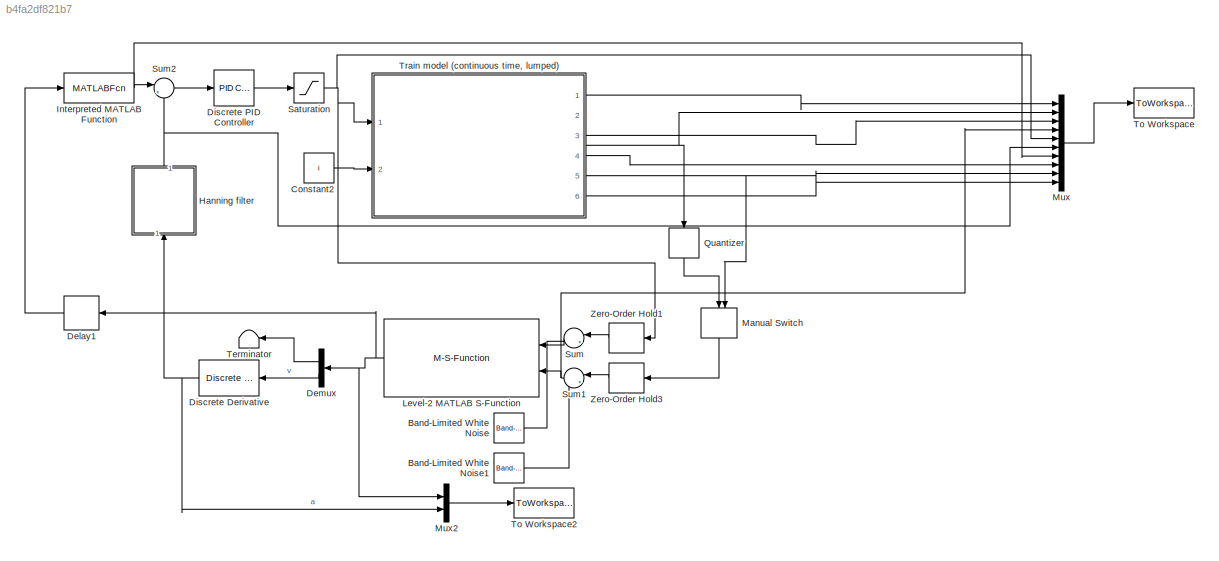
MODEL slx_b4fa2df821b7
KIND model
CONFIG AbsTol = auto
CONFIG EnableMultiTasking = off
CONFIG FixedStep = auto
CONFIG MaxStep = auto
CONFIG MinStep = auto
CONFIG RelTol = 1e-3
CONFIG SampleTimeConstraint = Unconstrained
CONFIG Solver = VariableStepAuto
CONFIG SolverName = VariableStepAuto
CONFIG StartTime = 0.0
CONFIG StopTime = tmax
BLOCK [Reference] Band-Limited White Noise  REF=simulink/Sources/Band-Limited
White Noise
  Ports = [0, 1]
  SourceBlock = simulink/Sources/Band-Limited\nWhite Noise
  SourceProductBaseCode = SL
  SourceProductName = Simulink
  SourceType = Band-Limited White Noise.
BLOCK [Reference] Band-Limited White Noise1  REF=simulink/Sources/Band-Limited
White Noise
  Ports = [0, 1]
  SourceBlock = simulink/Sources/Band-Limited\nWhite Noise
  SourceProductBaseCode = SL
  SourceProductName = Simulink
  SourceType = Band-Limited White Noise.
BLOCK [Constant] Constant2
  Value = i
BLOCK [Delay] Delay1
  DelayLength = 1
  InputPortMap = u0
  Ports = [1, 1]
BLOCK [Demux] Demux
  DisplayOption = bar
  Outputs = 2
  Ports = [1, 2]
BLOCK [Reference] Discrete Derivative  REF=simulink/Discrete/Discrete Derivative
  Ports = [1, 1]
  SourceBlock = simulink/Discrete/Discrete Derivative
  SourceProductBaseCode = SL
  SourceProductName = Simulink
  SourceType = Discrete Derivative
BLOCK [Reference] Discrete PID Controller  REF=simulink/Continuous/PID Controller
  Ports = [1, 1]
  SourceBlock = simulink/Continuous/PID Controller
  SourceProductBaseCode = SL
  SourceProductName = Simulink
  SourceType = PID 1dof
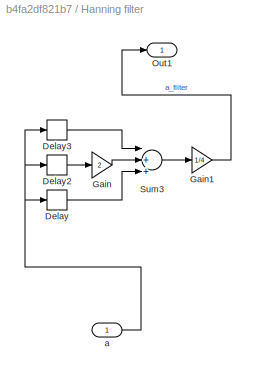
BLOCK [SubSystem] Hanning filter
  Ports = [1, 1]
  RequestExecContextInheritance = off
BLOCK [Delay] Hanning filter/Delay
  DelayLength = 1
  InputPortMap = u0
  Ports = [1, 1]
BLOCK [Delay] Hanning filter/Delay2
  InputPortMap = u0
  Ports = [1, 1]
BLOCK [Delay] Hanning filter/Delay3
  DelayLength = 3
  InputPortMap = u0
  Ports = [1, 1]
BLOCK [Gain] Hanning filter/Gain
  Gain = 2
  OutDataTypeStr = Inherit: Inherit via internal rule
  ParamDataTypeStr = Inherit: Inherit via internal rule
  SaturateOnIntegerOverflow = off
BLOCK [Gain] Hanning filter/Gain1
  Gain = 1/4
  OutDataTypeStr = Inherit: Inherit via internal rule
  ParamDataTypeStr = Inherit: Inherit via internal rule
  SaturateOnIntegerOverflow = off
BLOCK [Outport] Hanning filter/Out1
  IconDisplay = Signal name
BLOCK [Sum] Hanning filter/Sum3
  InputSameDT = off
  Inputs = |+++
  OutDataTypeStr = Inherit: Inherit via internal rule
  Ports = [3, 1]
  SaturateOnIntegerOverflow = off
BLOCK [Inport] Hanning filter/a
  IconDisplay = Port number
BLOCK [MATLABFcn] Interpreted MATLAB Function
  MATLABFcn = -1*(1+alpha*exp(beta*u(1)))*(u(2)*u(2)/abs(smax-u(1)-soffset))
  Ports = [1, 1]
BLOCK [M-S-Function] Level-2 MATLAB S-Function
  FunctionName = KalmanFilter
  Parameters = sysSS.A, sysSS.B, sysSS.C, P, rv, Rw, v0
  Ports = [2, 1]
BLOCK [ManualSwitch] Manual Switch
BLOCK [Mux] Mux
  DisplayOption = bar
  Inputs = 10
  Ports = [10, 1]
BLOCK [Mux] Mux2
  DisplayOption = bar
  Inputs = 2
  Ports = [2, 1]
BLOCK [Quantizer] Quantizer
  QuantizationInterval = 0.8/3.6
BLOCK [Saturate] Saturation
  InputPortMap = u0
  LowerLimit = -10*mumax*mL
  Ports = [1, 1]
  UpperLimit = 0
BLOCK [Sum] Sum
  IconShape = round
  InputSameDT = off
  Inputs = |++
  OutDataTypeStr = Inherit: Inherit via internal rule
  Ports = [2, 1]
  SaturateOnIntegerOverflow = off
BLOCK [Sum] Sum1
  IconShape = round
  InputSameDT = off
  Inputs = |++
  OutDataTypeStr = Inherit: Inherit via internal rule
  Ports = [2, 1]
  SaturateOnIntegerOverflow = off
BLOCK [Sum] Sum2
  IconShape = round
  InputSameDT = off
  Inputs = |+-
  OutDataTypeStr = Inherit: Inherit via internal rule
  Ports = [2, 1]
  SaturateOnIntegerOverflow = off
BLOCK [Terminator] Terminator
BLOCK [ToWorkspace] To Workspace
  FixptAsFi = on
  MaxDataPoints = inf
  Ports = [1]
  SampleTime = -1
  SaveFormat = Timeseries
  VariableName = simout
BLOCK [ToWorkspace] To Workspace2
  FixptAsFi = on
  MaxDataPoints = inf
  Ports = [1]
  SampleTime = -1
  SaveFormat = Timeseries
  VariableName = stateout
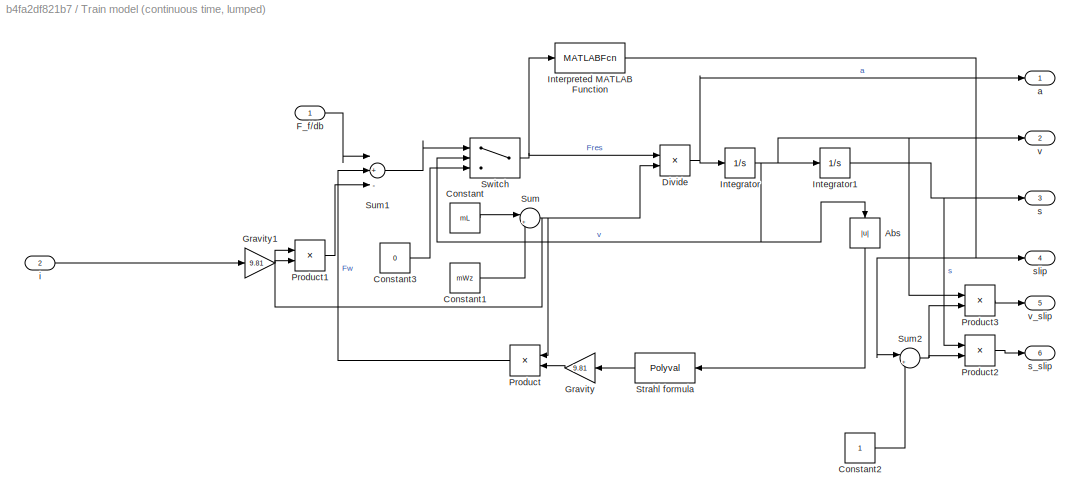
BLOCK [SubSystem] Train model (continuous time, lumped)
  Ports = [2, 6]
  RequestExecContextInheritance = off
BLOCK [Abs] Train model (continuous time, lumped)/Abs
  SaturateOnIntegerOverflow = off
BLOCK [Constant] Train model (continuous time, lumped)/Constant
  Value = mL
BLOCK [Constant] Train model (continuous time, lumped)/Constant1
  Value = mWz
BLOCK [Constant] Train model (continuous time, lumped)/Constant2
BLOCK [Constant] Train model (continuous time, lumped)/Constant3
  Value = 0
BLOCK [Product] Train model (continuous time, lumped)/Divide
  InputSameDT = off
  Inputs = */
  OutDataTypeStr = Inherit: Inherit via internal rule
  Ports = [2, 1]
  RndMeth = Floor
  SaturateOnIntegerOverflow = off
BLOCK [Inport] Train model (continuous time, lumped)/F_f//db
  IconDisplay = Port number
BLOCK [Gain] Train model (continuous time, lumped)/Gravity
  Gain = 9.81
  OutDataTypeStr = Inherit: Inherit via internal rule
  ParamDataTypeStr = Inherit: Inherit via internal rule
  SaturateOnIntegerOverflow = off
BLOCK [Gain] Train model (continuous time, lumped)/Gravity1
  Gain = 9.81
  OutDataTypeStr = Inherit: Inherit via internal rule
  ParamDataTypeStr = Inherit: Inherit via internal rule
  SaturateOnIntegerOverflow = off
BLOCK [Integrator] Train model (continuous time, lumped)/Integrator
  InitialCondition = v0
  Ports = [1, 1]
BLOCK [Integrator] Train model (continuous time, lumped)/Integrator1
  InitialCondition = s0
  Ports = [1, 1]
BLOCK [MATLABFcn] Train model (continuous time, lumped)/Interpreted MATLAB Function
  MATLABFcn = -ssigma*log(1-u(1)/(mumax*9.81*mL))
  Ports = [1, 1]
BLOCK [Product] Train model (continuous time, lumped)/Product
  InputSameDT = off
  OutDataTypeStr = Inherit: Inherit via internal rule
  Ports = [2, 1]
  RndMeth = Floor
  SaturateOnIntegerOverflow = off
BLOCK [Product] Train model (continuous time, lumped)/Product1
  InputSameDT = off
  OutDataTypeStr = Inherit: Inherit via internal rule
  Ports = [2, 1]
  RndMeth = Floor
  SaturateOnIntegerOverflow = off
BLOCK [Product] Train model (continuous time, lumped)/Product2
  InputSameDT = off
  OutDataTypeStr = Inherit: Inherit via internal rule
  Ports = [2, 1]
  RndMeth = Floor
  SaturateOnIntegerOverflow = off
BLOCK [Product] Train model (continuous time, lumped)/Product3
  InputSameDT = off
  OutDataTypeStr = Inherit: Inherit via internal rule
  Ports = [2, 1]
  RndMeth = Floor
  SaturateOnIntegerOverflow = off
BLOCK [Polyval] Train model (continuous time, lumped)/Strahl formula
  Coefs = Pres
BLOCK [Sum] Train model (continuous time, lumped)/Sum
  IconShape = round
  InputSameDT = off
  Inputs = |++
  OutDataTypeStr = Inherit: Inherit via internal rule
  Ports = [2, 1]
  SaturateOnIntegerOverflow = off
BLOCK [Sum] Train model (continuous time, lumped)/Sum1
  InputSameDT = off
  Inputs = |+--
  OutDataTypeStr = Inherit: Inherit via internal rule
  Ports = [3, 1]
  SaturateOnIntegerOverflow = off
BLOCK [Sum] Train model (continuous time, lumped)/Sum2
  IconShape = round
  InputSameDT = off
  Inputs = |++
  OutDataTypeStr = Inherit: Inherit via internal rule
  Ports = [2, 1]
  SaturateOnIntegerOverflow = off
BLOCK [Switch] Train model (continuous time, lumped)/Switch
  Criteria = u2 > Threshold
  InputSameDT = off
  SaturateOnIntegerOverflow = off
BLOCK [Outport] Train model (continuous time, lumped)/a
  IconDisplay = Port number
BLOCK [Inport] Train model (continuous time, lumped)/i
  IconDisplay = Port number
  Port = 2
BLOCK [Outport] Train model (continuous time, lumped)/s
  IconDisplay = Port number
  Port = 3
BLOCK [Outport] Train model (continuous time, lumped)/s_slip
  IconDisplay = Port number
  Port = 6
BLOCK [Outport] Train model (continuous time, lumped)/slip
  IconDisplay = Port number
  Port = 4
BLOCK [Outport] Train model (continuous time, lumped)/v
  IconDisplay = Port number
  Port = 2
BLOCK [Outport] Train model (continuous time, lumped)/v_slip
  IconDisplay = Port number
  Port = 5
BLOCK [ZeroOrderHold] Zero-Order Hold1
  SampleTime = Ts
BLOCK [ZeroOrderHold] Zero-Order Hold3
  SampleTime = Ts
LINE Band-Limited White Noise1:1 -> Sum1:2
LINE Band-Limited White Noise:1 -> Sum:2
LINE Constant2:1 -> Train model (continuous time, lumped):2
LINE Delay1:1 -> Interpreted MATLAB Function:1
LINE Demux:1 -> Terminator:1
LINE Demux:2 -> Discrete Derivative:1
NET Discrete Derivative:1 -> Hanning filter:1, Mux2:2
LINE Discrete PID Controller:1 -> Saturation:1
LINE Hanning filter/Delay2:1 -> Hanning filter/Gain:1
LINE Hanning filter/Delay3:1 -> Hanning filter/Sum3:1
LINE Hanning filter/Delay:1 -> Hanning filter/Sum3:3
LINE Hanning filter/Gain1:1 -> Hanning filter/Out1:1
LINE Hanning filter/Gain:1 -> Hanning filter/Sum3:2
LINE Hanning filter/Sum3:1 -> Hanning filter/Gain1:1
NET Hanning filter/a:1 -> Hanning filter/Delay2:1, Hanning filter/Delay3:1, Hanning filter/Delay:1
NET Hanning filter:1 -> Mux:6, Sum2:2
NET Interpreted MATLAB Function:1 -> Mux:7, Sum2:1
NET Level-2 MATLAB S-Function:1 -> Delay1:1, Demux:1, Mux2:1
LINE Manual Switch:1 -> Zero-Order Hold3:1
LINE Mux2:1 -> To Workspace2:1
LINE Mux:1 -> To Workspace:1
LINE Quantizer:1 -> Manual Switch:1
NET Saturation:1 -> Mux:5, Train model (continuous time, lumped):1, Zero-Order Hold1:1
NET Sum1:1 -> Level-2 MATLAB S-Function:2, Mux:4
LINE Sum2:1 -> Discrete PID Controller:1
LINE Sum:1 -> Level-2 MATLAB S-Function:1
LINE Train model (continuous time, lumped)/Abs:1 -> Train model (continuous time, lumped)/Strahl formula:1
LINE Train model (continuous time, lumped)/Constant1:1 -> Train model (continuous time, lumped)/Sum:2
LINE Train model (continuous time, lumped)/Constant2:1 -> Train model (continuous time, lumped)/Sum2:2
LINE Train model (continuous time, lumped)/Constant3:1 -> Train model (continuous time, lumped)/Switch:3
LINE Train model (continuous time, lumped)/Constant:1 -> Train model (continuous time, lumped)/Sum:1
NET Train model (continuous time, lumped)/Divide:1 -> Train model (continuous time, lumped)/Integrator:1, Train model (continuous time, lumped)/a:1
LINE Train model (continuous time, lumped)/F_f//db:1 -> Train model (continuous time, lumped)/Sum1:1
LINE Train model (continuous time, lumped)/Gravity1:1 -> Train model (continuous time, lumped)/Product1:2
LINE Train model (continuous time, lumped)/Gravity:1 -> Train model (continuous time, lumped)/Product:2
NET Train model (continuous time, lumped)/Integrator1:1 -> Train model (continuous time, lumped)/Product2:1, Train model (continuous time, lumped)/s:1
NET Train model (continuous time, lumped)/Integrator:1 -> Train model (continuous time, lumped)/Abs:1, Train model (continuous time, lumped)/Integrator1:1, Train model (continuous time, lumped)/Product3:1, Train model (continuous time, lumped)/Switch:2, Train model (continuous time, lumped)/v:1
NET Train model (continuous time, lumped)/Interpreted MATLAB Function:1 -> Train model (continuous time, lumped)/Sum2:1, Train model (continuous time, lumped)/slip:1
LINE Train model (continuous time, lumped)/Product1:1 -> Train model (continuous time, lumped)/Sum1:3
LINE Train model (continuous time, lumped)/Product2:1 -> Train model (continuous time, lumped)/s_slip:1
LINE Train model (continuous time, lumped)/Product3:1 -> Train model (continuous time, lumped)/v_slip:1
LINE Train model (continuous time, lumped)/Product:1 -> Train model (continuous time, lumped)/Sum1:2
LINE Train model (continuous time, lumped)/Strahl formula:1 -> Train model (continuous time, lumped)/Gravity:1
LINE Train model (continuous time, lumped)/Sum1:1 -> Train model (continuous time, lumped)/Switch:1
NET Train model (continuous time, lumped)/Sum2:1 -> Train model (continuous time, lumped)/Product2:2, Train model (continuous time, lumped)/Product3:2
NET Train model (continuous time, lumped)/Sum:1 -> Train model (continuous time, lumped)/Divide:2, Train model (continuous time, lumped)/Product1:1, Train model (continuous time, lumped)/Product:1
NET Train model (continuous time, lumped)/Switch:1 -> Train model (continuous time, lumped)/Divide:1, Train model (continuous time, lumped)/Interpreted MATLAB Function:1
LINE Train model (continuous time, lumped)/i:1 -> Train model (continuous time, lumped)/Gravity1:1
LINE Train model (continuous time, lumped):1 -> Mux:1
NET Train model (continuous time, lumped):2 -> Mux:2, Quantizer:1
LINE Train model (continuous time, lumped):3 -> Mux:3
LINE Train model (continuous time, lumped):4 -> Mux:8
NET Train model (continuous time, lumped):5 -> Manual Switch:2, Mux:9
LINE Train model (continuous time, lumped):6 -> Mux:10
LINE Zero-Order Hold1:1 -> Sum:1
LINE Zero-Order Hold3:1 -> Sum1:1
note: NET lines group one-source signal fan-out (src -> all destinations, sorted); 1:1 wires keep LINE
